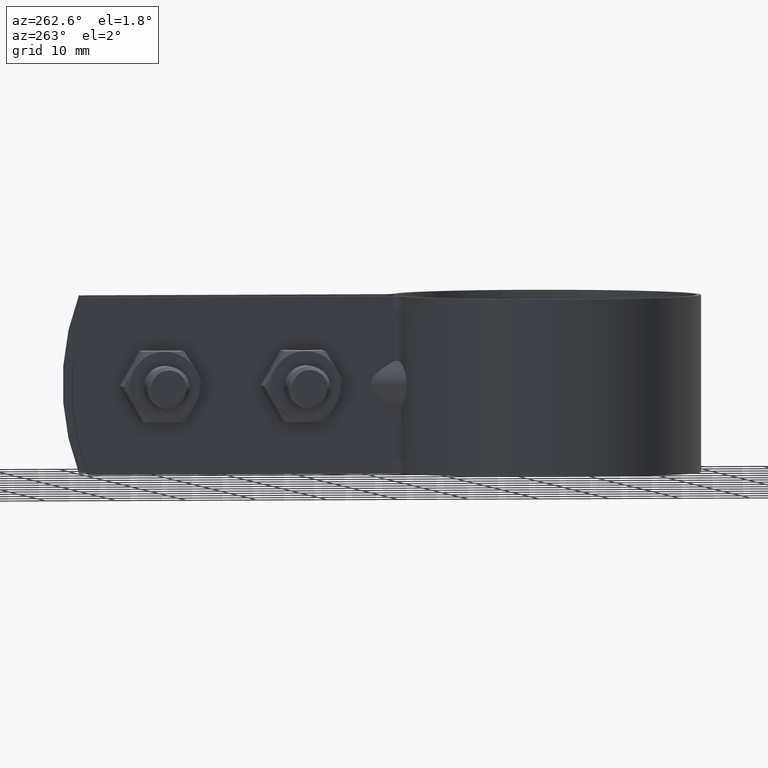
[diagram: clean part render]
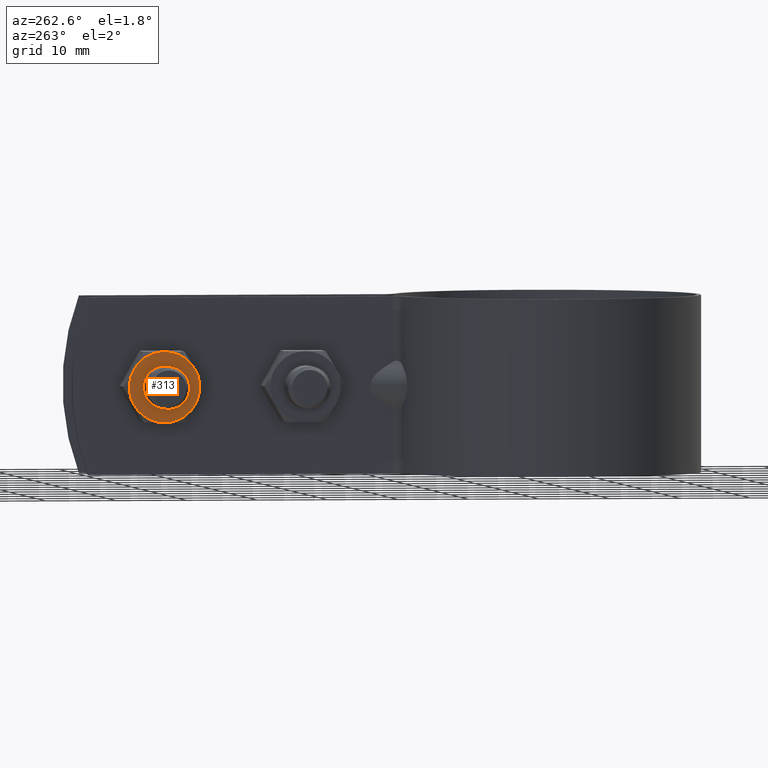
[diagram: same view with one face highlighted and labeled with its STEP entity id]
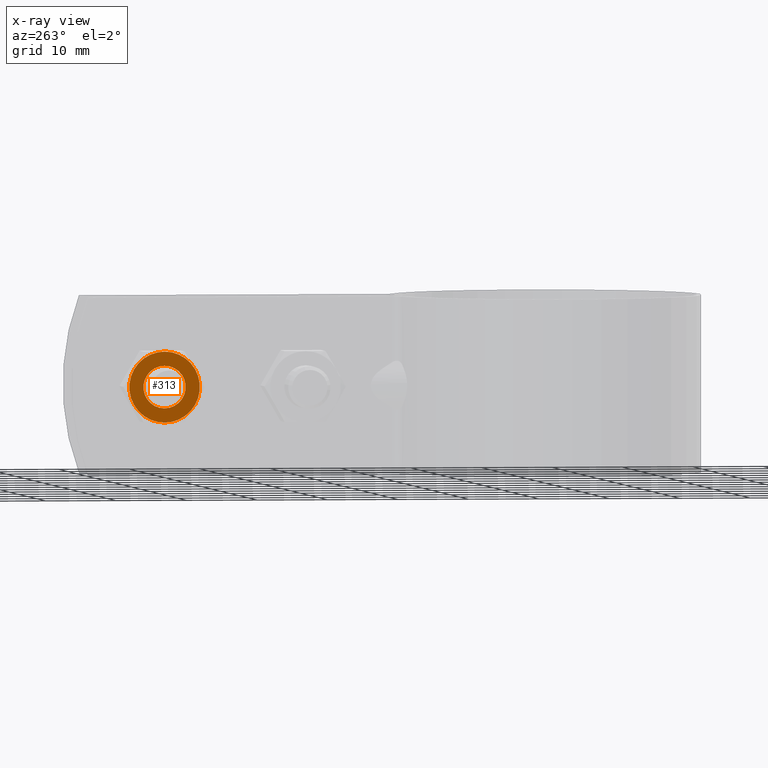
[diagram: x-ray of the same camera — body ghosted, the highlighted face saturated]
A machine part, auxiliary view. The second image highlights one B-rep face of the part: STEP entity #313.
The next image is the same camera in x-ray: the body ghosted, the highlighted face saturated — about 0% of this face is hidden behind the body in this view.
In plain terms, the highlighted planar face has unit normal (1, 0, 0).
Its self-contained STEP definition (entity closure, byte-faithful):
#313 = ADVANCED_FACE( '', ( #477, #478 ), #479, .F. );
#477 = FACE_OUTER_BOUND( '', #709, .T. );
#478 = FACE_BOUND( '', #710, .T. );
#479 = PLANE( '', #711 );
#709 = EDGE_LOOP( '', ( #1202, #1203, #1204, #1205, #1206, #1207 ) );
#710 = EDGE_LOOP( '', ( #1208 ) );
#711 = AXIS2_PLACEMENT_3D( '', #1209, #1210, #1211 );
#1202 = ORIENTED_EDGE( '', *, *, #1733, .F. );
#1203 = ORIENTED_EDGE( '', *, *, #1734, .F. );
#1204 = ORIENTED_EDGE( '', *, *, #1735, .F. );
#1205 = ORIENTED_EDGE( '', *, *, #1736, .F. );
#1206 = ORIENTED_EDGE( '', *, *, #1731, .F. );
#1207 = ORIENTED_EDGE( '', *, *, #1737, .F. );
#1208 = ORIENTED_EDGE( '', *, *, #1738, .T. );
#1209 = CARTESIAN_POINT( '', ( -10.0999999999999, 55.3703737388672, -8.67361737988404E-016 ) );
#1210 = DIRECTION( '', ( 1.00000000000000, 0.000000000000000, 0.000000000000000 ) );
#1211 = DIRECTION( '', ( 0.000000000000000, 0.000000000000000, -1.00000000000000 ) );
#1731 = EDGE_CURVE( '', #2049, #2051, #2052, .T. );
#1733 = EDGE_CURVE( '', #2054, #2055, #2056, .T. );
#1734 = EDGE_CURVE( '', #2057, #2054, #2058, .T. );
#1735 = EDGE_CURVE( '', #2059, #2057, #2060, .T. );
#1736 = EDGE_CURVE( '', #2051, #2059, #2061, .T. );
#1737 = EDGE_CURVE( '', #2055, #2049, #2062, .T. );
#1738 = EDGE_CURVE( '', #2063, #2063, #2064, .T. );
#2049 = VERTEX_POINT( '', #2579 );
#2051 = VERTEX_POINT( '', #2586 );
#2052 = CIRCLE( '', #2587, 4.99999999999943 );
#2054 = VERTEX_POINT( '', #2596 );
#2055 = VERTEX_POINT( '', #2597 );
#2056 = CIRCLE( '', #2598, 4.99999999999943 );
#2057 = VERTEX_POINT( '', #2599 );
#2058 = CIRCLE( '', #2600, 4.99999999999943 );
#2059 = VERTEX_POINT( '', #2601 );
#2060 = CIRCLE( '', #2602, 4.99999999999943 );
#2061 = CIRCLE( '', #2603, 4.99999999999943 );
#2062 = CIRCLE( '', #2604, 4.99999999999943 );
#2063 = VERTEX_POINT( '', #2605 );
#2064 = CIRCLE( '', #2606, 2.99999999999966 );
#2579 = CARTESIAN_POINT( '', ( -10.0999999999999, 55.3703737388672, 4.99999999999943 ) );
#2586 = CARTESIAN_POINT( '', ( -10.0999999999999, 51.0402467199457, 2.49999999999971 ) );
#2587 = AXIS2_PLACEMENT_3D( '', #3164, #3165, #3166 );
#2596 = CARTESIAN_POINT( '', ( -10.0999999999999, 59.7005007577888, -2.49999999999972 ) );
#2597 = CARTESIAN_POINT( '', ( -10.0999999999999, 59.7005007577888, 2.49999999999971 ) );
#2598 = AXIS2_PLACEMENT_3D( '', #3167, #3168, #3169 );
#2599 = CARTESIAN_POINT( '', ( -10.0999999999999, 55.3703737388672, -4.99999999999943 ) );
#2600 = AXIS2_PLACEMENT_3D( '', #3170, #3171, #3172 );
#2601 = CARTESIAN_POINT( '', ( -10.0999999999999, 51.0402467199457, -2.49999999999972 ) );
#2602 = AXIS2_PLACEMENT_3D( '', #3173, #3174, #3175 );
#2603 = AXIS2_PLACEMENT_3D( '', #3176, #3177, #3178 );
#2604 = AXIS2_PLACEMENT_3D( '', #3179, #3180, #3181 );
#2605 = CARTESIAN_POINT( '', ( -10.0999999999999, 55.3703737388672, -2.99999999999966 ) );
#2606 = AXIS2_PLACEMENT_3D( '', #3182, #3183, #3184 );
#3164 = CARTESIAN_POINT( '', ( -10.0999999999999, 55.3703737388672, -8.67361737988404E-016 ) );
#3165 = DIRECTION( '', ( 1.00000000000000, 0.000000000000000, 0.000000000000000 ) );
#3166 = DIRECTION( '', ( 0.000000000000000, 0.000000000000000, -1.00000000000000 ) );
#3167 = CARTESIAN_POINT( '', ( -10.0999999999999, 55.3703737388672, -8.67361737988404E-016 ) );
#3168 = DIRECTION( '', ( 1.00000000000000, 0.000000000000000, 0.000000000000000 ) );
#3169 = DIRECTION( '', ( 0.000000000000000, 0.000000000000000, -1.00000000000000 ) );
#3170 = CARTESIAN_POINT( '', ( -10.0999999999999, 55.3703737388672, -8.67361737988404E-016 ) );
#3171 = DIRECTION( '', ( 1.00000000000000, 0.000000000000000, 0.000000000000000 ) );
#3172 = DIRECTION( '', ( 0.000000000000000, 0.000000000000000, -1.00000000000000 ) );
#3173 = CARTESIAN_POINT( '', ( -10.0999999999999, 55.3703737388672, -8.67361737988404E-016 ) );
#3174 = DIRECTION( '', ( 1.00000000000000, 0.000000000000000, 0.000000000000000 ) );
#3175 = DIRECTION( '', ( 0.000000000000000, 0.000000000000000, -1.00000000000000 ) );
#3176 = CARTESIAN_POINT( '', ( -10.0999999999999, 55.3703737388672, -8.67361737988404E-016 ) );
#3177 = DIRECTION( '', ( 1.00000000000000, 0.000000000000000, 0.000000000000000 ) );
#3178 = DIRECTION( '', ( 0.000000000000000, 0.000000000000000, -1.00000000000000 ) );
#3179 = CARTESIAN_POINT( '', ( -10.0999999999999, 55.3703737388672, -8.67361737988404E-016 ) );
#3180 = DIRECTION( '', ( 1.00000000000000, 0.000000000000000, 0.000000000000000 ) );
#3181 = DIRECTION( '', ( 0.000000000000000, 0.000000000000000, -1.00000000000000 ) );
#3182 = CARTESIAN_POINT( '', ( -10.0999999999999, 55.3703737388672, -8.67361737988404E-016 ) );
#3183 = DIRECTION( '', ( 1.00000000000000, 0.000000000000000, 0.000000000000000 ) );
#3184 = DIRECTION( '', ( 0.000000000000000, 0.000000000000000, -1.00000000000000 ) );